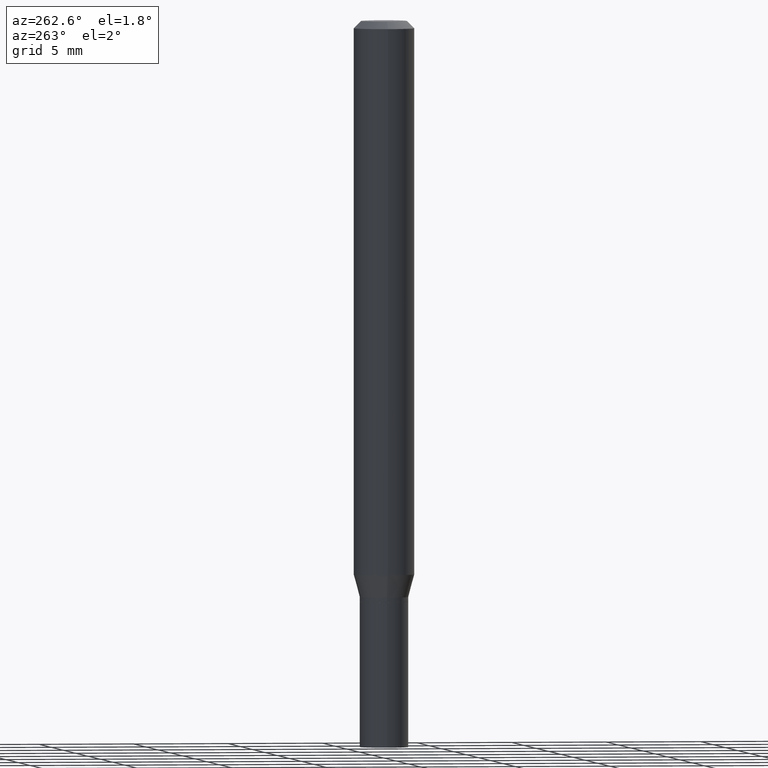
[diagram: clean part render]
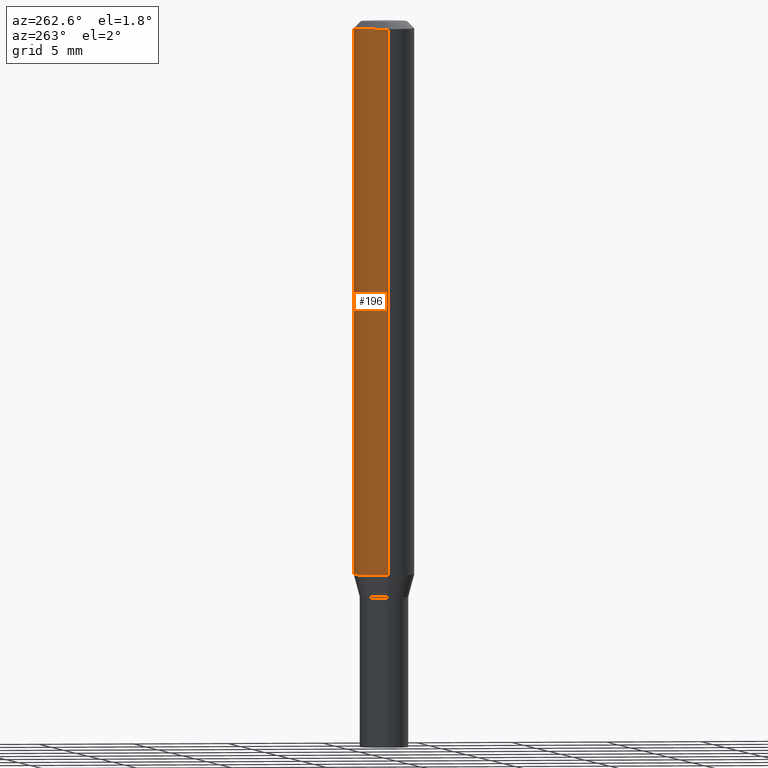
[diagram: same view with one face highlighted and labeled with its STEP entity id]
A machine part, auxiliary view. The second image highlights one B-rep face of the part: STEP entity #196.
In plain terms, the highlighted cylindrical surface (edge-blend (fillet) strip) has radius 1.5875 mm, axis along (-0, 0, 1).
Its self-contained STEP definition (entity closure, byte-faithful):
#12 = DIRECTION ( 'NONE',  ( 1.000000000000000000, -6.982962677686266711E-15, 4.876176775795935793E-29 ) ) ;
#27 = DIRECTION ( 'NONE',  ( -2.445468806185136597E-29, 3.491481338843145583E-15, 1.000000000000000000 ) ) ;
#28 = AXIS2_PLACEMENT_3D ( 'NONE', #183, #326, #12 ) ;
#94 = VERTEX_POINT ( 'NONE', #250 ) ;
#108 = VECTOR ( 'NONE', #126, 39.37007874015748143 ) ;
#120 = CYLINDRICAL_SURFACE ( 'NONE', #28, 0.06250000000000000000 ) ;
#126 = DIRECTION ( 'NONE',  ( -2.445468806185136877E-29, 3.491481338843145188E-15, 1.000000000000000000 ) ) ;
#138 = ORIENTED_EDGE ( 'NONE', *, *, #204, .T. ) ;
#140 = VERTEX_POINT ( 'NONE', #156 ) ;
#152 = DIRECTION ( 'NONE',  ( -2.445468806185136597E-29, 3.491481338843145583E-15, 1.000000000000000000 ) ) ;
#156 = CARTESIAN_POINT ( 'NONE',  ( 0.06250000000000000000, -4.428418138700722248E-15, -1.143349364905389631 ) ) ;
#173 = EDGE_CURVE ( 'NONE', #350, #378, #466, .T. ) ;
#182 = LINE ( 'NONE', #376, #108 ) ;
#183 = CARTESIAN_POINT ( 'NONE',  ( 0.000000000000000000, 0.000000000000000000, 0.000000000000000000 ) ) ;
#186 = LINE ( 'NONE', #330, #295 ) ;
#196 = ADVANCED_FACE ( 'NONE', ( #413 ), #120, .T. ) ;
#198 = AXIS2_PLACEMENT_3D ( 'NONE', #324, #152, #298 ) ;
#204 = EDGE_CURVE ( 'NONE', #94, #378, #186, .T. ) ;
#205 = ORIENTED_EDGE ( 'NONE', *, *, #374, .F. ) ;
#218 = DIRECTION ( 'NONE',  ( 1.000000000000000000, -6.982962677686270655E-15, 0.000000000000000000 ) ) ;
#231 = CARTESIAN_POINT ( 'NONE',  ( -0.06250000000000000000, -1.578088385863926213E-15, -0.01499999999999999944 ) ) ;
#250 = CARTESIAN_POINT ( 'NONE',  ( -0.06250000000000000000, -3.547893761495267568E-15, -1.143349364905389631 ) ) ;
#267 = AXIS2_PLACEMENT_3D ( 'NONE', #412, #27, #218 ) ;
#289 = EDGE_CURVE ( 'NONE', #140, #94, #458, .T. ) ;
#295 = VECTOR ( 'NONE', #367, 39.37007874015748143 ) ;
#298 = DIRECTION ( 'NONE',  ( 1.000000000000000000, -6.982962677686266711E-15, 0.000000000000000000 ) ) ;
#324 = CARTESIAN_POINT ( 'NONE',  ( 3.668203209277705088E-31, -5.237222008264718399E-17, -0.01499999999999999944 ) ) ;
#326 = DIRECTION ( 'NONE',  ( -2.445468806185136597E-29, 3.491481338843145583E-15, 1.000000000000000000 ) ) ;
#330 = CARTESIAN_POINT ( 'NONE',  ( -0.06250000000000000000, 4.440892098500626162E-16, -3.074334431409316114E-30 ) ) ;
#340 = ORIENTED_EDGE ( 'NONE', *, *, #173, .F. ) ;
#345 = EDGE_LOOP ( 'NONE', ( #460, #138, #340, #205 ) ) ;
#350 = VERTEX_POINT ( 'NONE', #360 ) ;
#360 = CARTESIAN_POINT ( 'NONE',  ( 0.06250000000000000000, -4.888073874380388472E-16, -0.01499999999999999944 ) ) ;
#367 = DIRECTION ( 'NONE',  ( -2.445468806185136877E-29, 3.491481338843145188E-15, 1.000000000000000000 ) ) ;
#374 = EDGE_CURVE ( 'NONE', #140, #350, #182, .T. ) ;
#376 = CARTESIAN_POINT ( 'NONE',  ( 0.06250000000000000000, -4.364351673553916694E-16, 3.047610484872459871E-30 ) ) ;
#378 = VERTEX_POINT ( 'NONE', #231 ) ;
#412 = CARTESIAN_POINT ( 'NONE',  ( 2.796025206447717260E-29, -3.991982971345330579E-15, -1.143349364905389631 ) ) ;
#413 = FACE_OUTER_BOUND ( 'NONE', #345, .T. ) ;
#458 = CIRCLE ( 'NONE', #267, 0.06250000000000000000 ) ;
#460 = ORIENTED_EDGE ( 'NONE', *, *, #289, .T. ) ;
#466 = CIRCLE ( 'NONE', #198, 0.06250000000000000000 ) ;